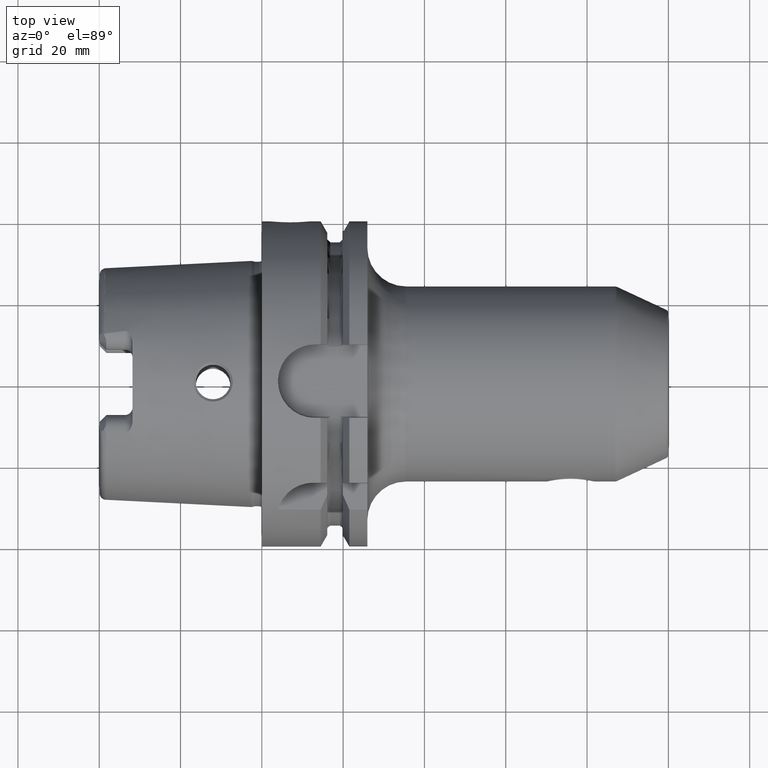
[diagram: clean part render]
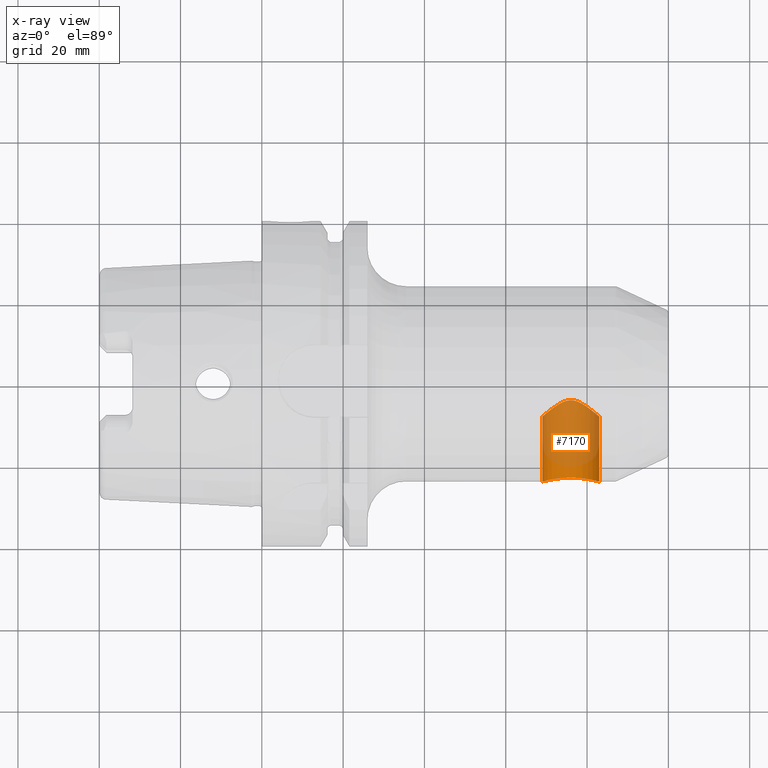
[diagram: x-ray — body ghosted, one internal face saturated and labeled with its STEP entity id]
A machine part, top view, then the same camera in x-ray: the body is ghosted and one INTERNAL B-rep face — a face not visible from any outside direction — is saturated and labeled: STEP entity #7170.
In plain terms, the highlighted cylindrical surface (edge-blend (fillet) strip) has radius 7 mm, axis along (0, -1, 0).
Its self-contained STEP definition (entity closure, byte-faithful):
#7007=CARTESIAN_POINT('',(6.9E1,-8.E0,0.E0));
#7008=CARTESIAN_POINT('',(6.9E1,-8.E0,-2.349145425509E-1));
#7009=CARTESIAN_POINT('',(6.902366031855E1,-7.979284264141E0,
-7.070224843731E-1));
#7010=CARTESIAN_POINT('',(6.913187828710E1,-7.884764818898E0,
-1.414254299705E0));
#7011=CARTESIAN_POINT('',(6.931343901093E1,-7.726974816642E0,
-2.114161388074E0));
#7012=CARTESIAN_POINT('',(6.957669085789E1,-7.500050290510E0,
-2.817070659645E0));
#7013=CARTESIAN_POINT('',(6.992819044093E1,-7.200834102430E0,
-3.513529166723E0));
#7014=CARTESIAN_POINT('',(7.037708904565E1,-6.825724053620E0,
-4.197267898797E0));
#7015=CARTESIAN_POINT('',(7.091857575844E1,-6.386094700238E0,
-4.837451148677E0));
#7016=CARTESIAN_POINT('',(7.148293136520E1,-5.946439891057E0,
-5.363869241804E0));
#7017=CARTESIAN_POINT('',(7.203192981026E1,-5.540516056436E0,
-5.779281132343E0));
#7018=CARTESIAN_POINT('',(7.258543099519E1,-5.157492503260E0,
-6.122090901637E0));
#7019=CARTESIAN_POINT('',(7.316255845872E1,-4.793470542810E0,
-6.409778710862E0));
#7020=CARTESIAN_POINT('',(7.375468165229E1,-4.466686246161E0,
-6.640248487925E0));
#7021=CARTESIAN_POINT('',(7.436204498478E1,-4.192753881381E0,
-6.815129789541E0));
#7022=CARTESIAN_POINT('',(7.495100949285E1,-4.000092399468E0,
-6.928801851696E0));
#7023=CARTESIAN_POINT('',(7.549106655542E1,-3.894876693415E0,
-6.987950914839E0));
#7024=CARTESIAN_POINT('',(7.600179562476E1,-3.861912064996E0,
-7.006093462165E0));
#7025=CARTESIAN_POINT('',(7.651292470579E1,-3.895377810254E0,
-6.987673750157E0));
#7026=CARTESIAN_POINT('',(7.705356285100E1,-4.001273430326E0,
-6.928127616164E0));
#7027=CARTESIAN_POINT('',(7.764306003631E1,-4.194754314183E0,
-6.813910878815E0));
#7028=CARTESIAN_POINT('',(7.825022898864E1,-4.469184708812E0,
-6.638575594768E0));
#7029=CARTESIAN_POINT('',(7.884169812738E1,-4.796022672174E0,
-6.407867413488E0));
#7030=CARTESIAN_POINT('',(7.941774010793E1,-5.159622807585E0,
-6.120277711929E0));
#7031=CARTESIAN_POINT('',(7.996997363405E1,-5.541900053280E0,
-5.777924777357E0));
#7032=CARTESIAN_POINT('',(8.051800830409E1,-5.947164261968E0,
-5.363039452128E0));
#7033=CARTESIAN_POINT('',(8.108175786480E1,-6.386366231149E0,
-4.837056165112E0));
#7034=CARTESIAN_POINT('',(8.162278014949E1,-6.825617775392E0,
-4.197418834983E0));
#7035=CARTESIAN_POINT('',(8.207173283399E1,-7.200768550795E0,
-3.513676818827E0));
#7036=CARTESIAN_POINT('',(8.242328631558E1,-7.500030808106E0,
-2.817123301819E0));
#7037=CARTESIAN_POINT('',(8.268652705183E1,-7.726945443466E0,
-2.114262796606E0));
#7038=CARTESIAN_POINT('',(8.286809758403E1,-7.884743776624E0,
-1.414372543872E0));
#7039=CARTESIAN_POINT('',(8.297633144214E1,-7.979277050563E0,
-7.071209913142E-1));
#7040=CARTESIAN_POINT('',(8.3E1,-8.E0,-2.349537336941E-1));
#7041=CARTESIAN_POINT('',(8.3E1,-8.E0,0.E0));
#7043=CARTESIAN_POINT('',(8.3E1,-2.400001532056E1,0.E0));
#7044=CARTESIAN_POINT('',(8.3E1,-2.400001532056E1,-2.770739962922E-1));
#7045=CARTESIAN_POINT('',(8.296711190270E1,-2.399036812283E1,
-8.325105798452E-1));
#7046=CARTESIAN_POINT('',(8.281783338514E1,-2.394726430798E1,
-1.658860575581E0));
#7047=CARTESIAN_POINT('',(8.257065093191E1,-2.387774413902E1,
-2.462689244150E0));
#7048=CARTESIAN_POINT('',(8.222459029413E1,-2.378441263186E1,
-3.239694955363E0));
#7049=CARTESIAN_POINT('',(8.178617649118E1,-2.367289874822E1,
-3.970563380960E0));
#7050=CARTESIAN_POINT('',(8.125529223142E1,-2.354815274286E1,
-4.650680148678E0));
#7051=CARTESIAN_POINT('',(8.064791174604E1,-2.341942650208E1,
-5.257756192012E0));
#7052=CARTESIAN_POINT('',(7.996715944221E1,-2.329326480198E1,
-5.788533656469E0));
#7053=CARTESIAN_POINT('',(7.923558995663E1,-2.317934310210E1,
-6.226756247576E0));
#7054=CARTESIAN_POINT('',(7.845783820651E1,-2.308319635377E1,
-6.572463361731E0));
#7055=CARTESIAN_POINT('',(7.765485765232E1,-2.301126809165E1,
-6.818725462984E0));
#7056=CARTESIAN_POINT('',(7.683090207022E1,-2.296652426729E1,
-6.967192847069E0));
#7057=CARTESIAN_POINT('',(7.599994995508E1,-2.295145847473E1,
-7.016404348067E0));
#7058=CARTESIAN_POINT('',(7.516907755448E1,-2.296652523297E1,
-6.967189760083E0));
#7059=CARTESIAN_POINT('',(7.434506117531E1,-2.301127372028E1,
-6.818706442629E0));
#7060=CARTESIAN_POINT('',(7.354213263965E1,-2.308319972393E1,
-6.572451682748E0));
#7061=CARTESIAN_POINT('',(7.276434719077E1,-2.317935169305E1,
-6.226724434584E0));
#7062=CARTESIAN_POINT('',(7.203280512797E1,-2.329327106724E1,
-5.788508370666E0));
#7063=CARTESIAN_POINT('',(7.135204550631E1,-2.341943487855E1,
-5.257719556934E0));
#7064=CARTESIAN_POINT('',(7.074467035395E1,-2.354816123617E1,
-4.650636466284E0));
#7065=CARTESIAN_POINT('',(7.021380026186E1,-2.367290441104E1,
-3.970531007782E0));
#7066=CARTESIAN_POINT('',(6.977537523244E1,-2.378442168307E1,
-3.239627988621E0));
#7067=CARTESIAN_POINT('',(6.942933949130E1,-2.387774684494E1,
-2.462661505222E0));
#7068=CARTESIAN_POINT('',(6.918215637248E1,-2.394726722578E1,
-1.658817138035E0));
#7069=CARTESIAN_POINT('',(6.903288956887E1,-2.399036768651E1,
-8.325103985553E-1));
#7070=CARTESIAN_POINT('',(6.9E1,-2.400001537711E1,-2.770749981579E-1));
#7071=CARTESIAN_POINT('',(6.9E1,-2.400001537711E1,0.E0));
#7073=DIRECTION('',(0.E0,1.E0,0.E0));
#7074=VECTOR('',#7073,1.600001537711E1);
#7075=CARTESIAN_POINT('',(6.9E1,-2.400001537711E1,0.E0));
#7076=LINE('',#7075,#7074);
#7107=DIRECTION('',(0.E0,1.E0,0.E0));
#7108=VECTOR('',#7107,1.600001532056E1);
#7109=CARTESIAN_POINT('',(8.3E1,-2.400001532056E1,0.E0));
#7110=LINE('',#7109,#7108);
#7147=CARTESIAN_POINT('',(6.9E1,-2.400001537711E1,0.E0));
#7148=CARTESIAN_POINT('',(6.9E1,-8.E0,0.E0));
#7149=VERTEX_POINT('',#7147);
#7150=VERTEX_POINT('',#7148);
#7151=CARTESIAN_POINT('',(8.3E1,-2.400001532056E1,0.E0));
#7152=CARTESIAN_POINT('',(8.3E1,-8.E0,0.E0));
#7153=VERTEX_POINT('',#7151);
#7154=VERTEX_POINT('',#7152);
#7155=CARTESIAN_POINT('',(7.6E1,4.985421899874E0,0.E0));
#7156=DIRECTION('',(0.E0,-1.E0,0.E0));
#7157=DIRECTION('',(-1.E0,0.E0,0.E0));
#7158=AXIS2_PLACEMENT_3D('',#7155,#7156,#7157);
#7159=CYLINDRICAL_SURFACE('',#7158,7.E0);
#7161=ORIENTED_EDGE('',*,*,#7160,.T.);
#7163=ORIENTED_EDGE('',*,*,#7162,.T.);
#7165=ORIENTED_EDGE('',*,*,#7164,.F.);
#7167=ORIENTED_EDGE('',*,*,#7166,.T.);
#7168=EDGE_LOOP('',(#7161,#7163,#7165,#7167));
#7169=FACE_OUTER_BOUND('',#7168,.F.);
#7170=ADVANCED_FACE('',(#7169),#7159,.F.);
#7042=B_SPLINE_CURVE_WITH_KNOTS('',3,(#7007,#7008,#7009,#7010,#7011,#7012,#7013,
#7014,#7015,#7016,#7017,#7018,#7019,#7020,#7021,#7022,#7023,#7024,#7025,#7026,
#7027,#7028,#7029,#7030,#7031,#7032,#7033,#7034,#7035,#7036,#7037,#7038,#7039,
#7040,#7041),.UNSPECIFIED.,.F.,.F.,(4,1,1,1,1,1,1,1,1,1,1,1,1,1,1,1,1,1,1,1,1,1,
1,1,1,1,1,1,1,1,1,1,4),(0.E0,3.125E-2,6.25E-2,9.375E-2,1.25E-1,1.5625E-1,
1.875E-1,2.1875E-1,2.5E-1,2.8125E-1,3.125E-1,3.4375E-1,3.75E-1,4.0625E-1,
4.375E-1,4.6875E-1,5.E-1,5.3125E-1,5.625E-1,5.9375E-1,6.25E-1,6.5625E-1,
6.875E-1,7.1875E-1,7.5E-1,7.8125E-1,8.125E-1,8.4375E-1,8.75E-1,9.0625E-1,
9.375E-1,9.6875E-1,1.E0),.UNSPECIFIED.);
#7072=B_SPLINE_CURVE_WITH_KNOTS('',3,(#7043,#7044,#7045,#7046,#7047,#7048,#7049,
#7050,#7051,#7052,#7053,#7054,#7055,#7056,#7057,#7058,#7059,#7060,#7061,#7062,
#7063,#7064,#7065,#7066,#7067,#7068,#7069,#7070,#7071),.UNSPECIFIED.,.F.,.F.,(4,
1,1,1,1,1,1,1,1,1,1,1,1,1,1,1,1,1,1,1,1,1,1,1,1,1,4),(0.E0,3.846153846154E-2,
7.692307692308E-2,1.153846153846E-1,1.538461538462E-1,1.923076923077E-1,
2.307692307692E-1,2.692307692308E-1,3.076923076923E-1,3.461538461538E-1,
3.846153846154E-1,4.230769230769E-1,4.615384615385E-1,5.E-1,5.384615384615E-1,
5.769230769231E-1,6.153846153846E-1,6.538461538462E-1,6.923076923077E-1,
7.307692307692E-1,7.692307692308E-1,8.076923076923E-1,8.461538461538E-1,
8.846153846154E-1,9.230769230769E-1,9.615384615385E-1,1.E0),.UNSPECIFIED.);
#7160=EDGE_CURVE('',#7149,#7150,#7076,.T.);
#7162=EDGE_CURVE('',#7150,#7154,#7042,.T.);
#7164=EDGE_CURVE('',#7153,#7154,#7110,.T.);
#7166=EDGE_CURVE('',#7153,#7149,#7072,.T.);